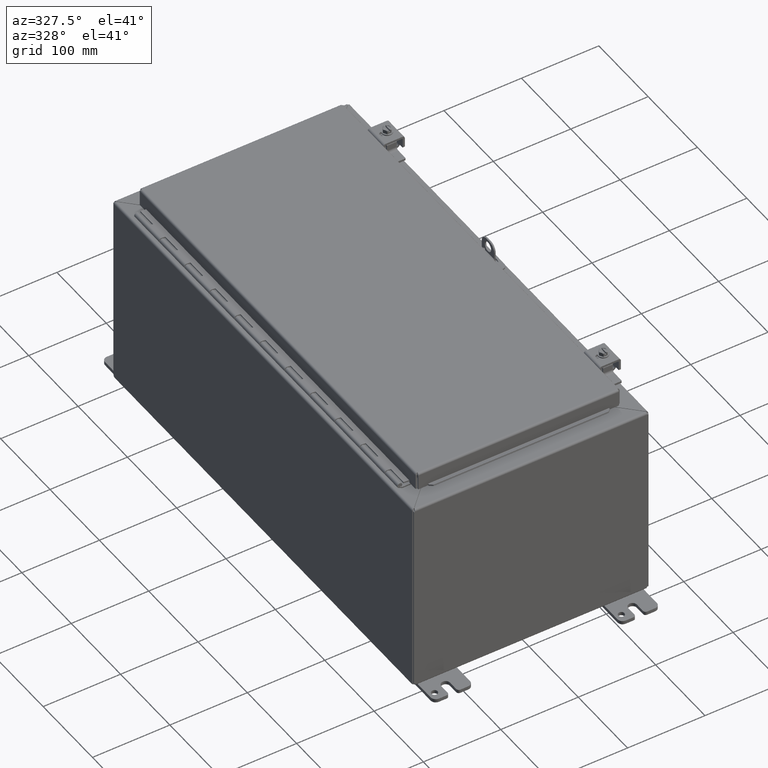
[diagram: clean part render]
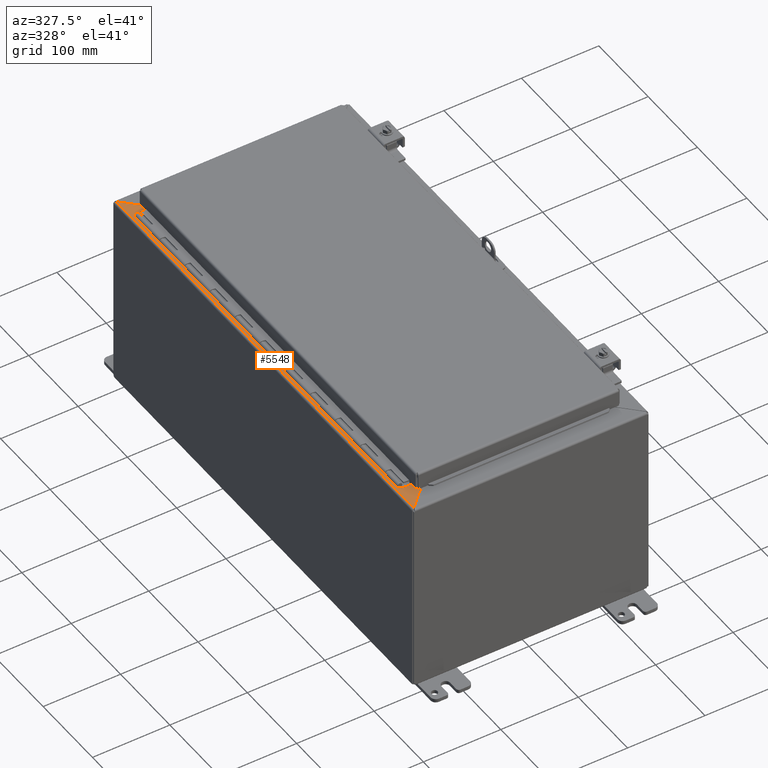
[diagram: same view with one face highlighted and labeled with its STEP entity id]
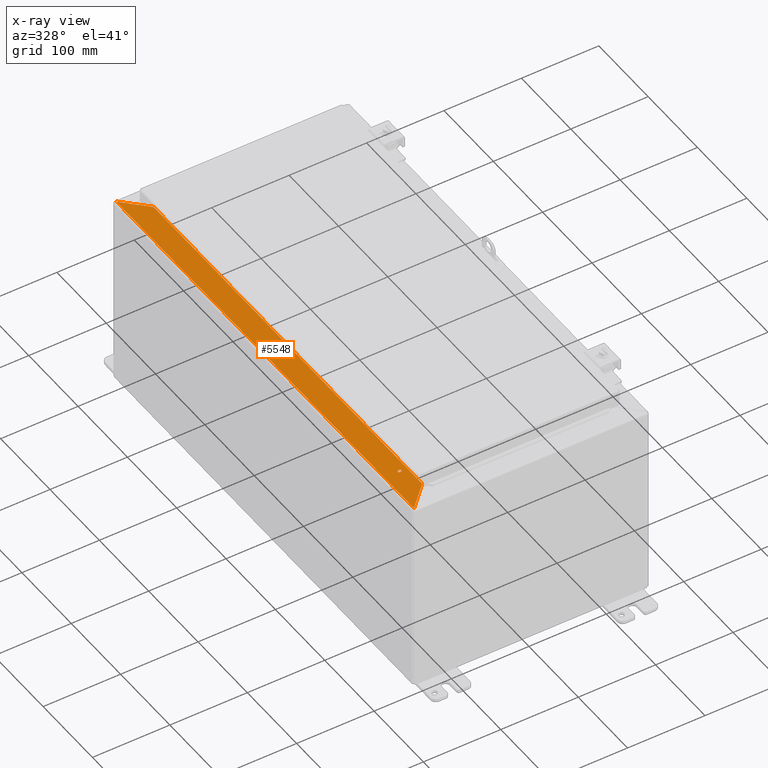
[diagram: x-ray of the same camera — body ghosted, the highlighted face saturated]
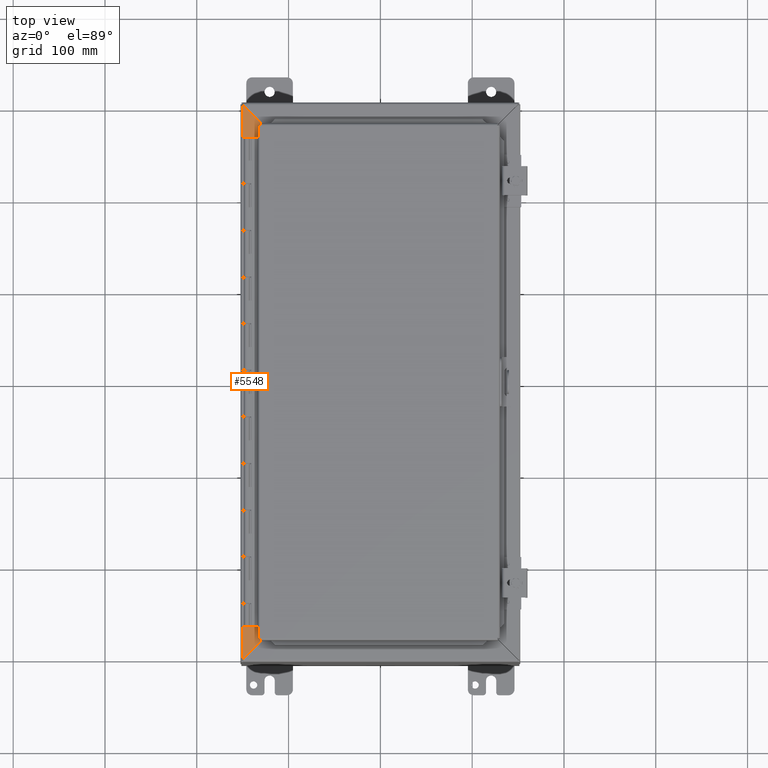
[diagram: same view with one face highlighted and labeled with its STEP entity id]
A machine part, auxiliary view. The second image highlights one B-rep face of the part: STEP entity #5548.
The next image is the same camera in x-ray: the body ghosted, the highlighted face saturated — about 0% of this face is hidden behind the body in this view.
A second angle (top view) of the same face is appended — the face is thin or edge-on in the first view.
In plain terms, the highlighted planar face has unit normal (0, 0, -1).
Its self-contained STEP definition (entity closure, byte-faithful):
#1522=CARTESIAN_POINT('',(-5.130500000000041,-9.562500000000039,10.000000000000007));
#1523=VERTEX_POINT('',#1522);
#1530=CARTESIAN_POINT('',(-5.067500000000041,-9.562500000000039,10.000000000000009));
#1531=VERTEX_POINT('',#1530);
#1532=CARTESIAN_POINT('',(-5.067500000000041,-9.562500000000039,10.000000000000009));
#1533=DIRECTION('',(-1.0,0.0,0.0));
#1534=VECTOR('',#1533,0.063);
#1535=LINE('',#1532,#1534);
#1536=EDGE_CURVE('',#1531,#1523,#1535,.T.);
#1562=CARTESIAN_POINT('',(-5.067500000000041,-9.437500000000039,10.000000000000009));
#1563=VERTEX_POINT('',#1562);
#1564=CARTESIAN_POINT('',(-5.067500000000041,-9.500000000000037,10.000000000000012));
#1565=DIRECTION('',(0.0,0.0,-1.0));
#1566=DIRECTION('',(0.0,-1.0,0.0));
#1567=AXIS2_PLACEMENT_3D('',#1564,#1565,#1566);
#1568=CIRCLE('',#1567,0.0625);
#1569=EDGE_CURVE('',#1563,#1531,#1568,.T.);
#1594=CARTESIAN_POINT('',(-5.130500000000041,-9.437500000000037,10.000000000000007));
#1595=VERTEX_POINT('',#1594);
#1596=CARTESIAN_POINT('',(-5.130500000000041,-9.437500000000039,10.000000000000007));
#1597=DIRECTION('',(1.0,0.0,0.0));
#1598=VECTOR('',#1597,0.063);
#1599=LINE('',#1596,#1598);
#1600=EDGE_CURVE('',#1595,#1563,#1599,.T.);
#1624=CARTESIAN_POINT('',(-5.130500000000041,-9.500000000000037,10.000000000000011));
#1625=DIRECTION('',(0.0,0.0,-1.0));
#1626=DIRECTION('',(0.0,1.0,0.0));
#1627=AXIS2_PLACEMENT_3D('',#1624,#1625,#1626);
#1628=CIRCLE('',#1627,0.0625);
#1629=EDGE_CURVE('',#1523,#1595,#1628,.T.);
#5215=CARTESIAN_POINT('',(-4.730250000000048,10.719201456544013,10.000000000000012));
#5216=VERTEX_POINT('',#5215);
#5263=CARTESIAN_POINT('',(-4.730250000000043,-10.719201456544015,10.000000000000012));
#5264=VERTEX_POINT('',#5263);
#5289=CARTESIAN_POINT('',(-4.730250000000043,-10.719201456544013,10.000000000000012));
#5290=DIRECTION('',(0.0,1.0,0.0));
#5291=VECTOR('',#5290,21.438402913088026);
#5292=LINE('',#5289,#5291);
#5293=EDGE_CURVE('',#5264,#5216,#5292,.T.);
#5336=CARTESIAN_POINT('',(-5.894750000000044,-11.883701456544012,10.000000000000002));
#5337=VERTEX_POINT('',#5336);
#5338=CARTESIAN_POINT('',(-4.730250000000043,-10.719201456544017,10.000000000000009));
#5339=DIRECTION('',(-0.707106781186547,-0.707106781186548,-7.550466E-015));
#5340=VECTOR('',#5339,1.646851693383469);
#5341=LINE('',#5338,#5340);
#5342=EDGE_CURVE('',#5264,#5337,#5341,.T.);
#5519=CARTESIAN_POINT('',(-5.303016921115465,-3.172773E-016,10.000000000000009));
#5520=DIRECTION('',(0.0,0.0,-1.0));
#5521=DIRECTION('',(-1.0,0.0,0.0));
#5522=AXIS2_PLACEMENT_3D('',#5519,#5520,#5521);
#5523=PLANE('',#5522);
#5524=ORIENTED_EDGE('',*,*,#5293,.T.);
#5525=CARTESIAN_POINT('',(-5.894750000000049,11.883701456544015,10.000000000000002));
#5526=VERTEX_POINT('',#5525);
#5527=CARTESIAN_POINT('',(-5.89475000000005,11.883701456544017,10.000000000000005));
#5528=DIRECTION('',(0.707106781186547,-0.707106781186548,6.471828E-015));
#5529=VECTOR('',#5528,1.646851693383473);
#5530=LINE('',#5527,#5529);
#5531=EDGE_CURVE('',#5526,#5216,#5530,.T.);
#5532=ORIENTED_EDGE('',*,*,#5531,.F.);
#5533=CARTESIAN_POINT('',(-5.89475000000005,11.883701456544015,10.000000000000007));
#5534=DIRECTION('',(0.0,-1.0,0.0));
#5535=VECTOR('',#5534,23.767402913088027);
#5536=LINE('',#5533,#5535);
#5537=EDGE_CURVE('',#5526,#5337,#5536,.T.);
#5538=ORIENTED_EDGE('',*,*,#5537,.T.);
#5539=ORIENTED_EDGE('',*,*,#5342,.F.);
#5540=EDGE_LOOP('',(#5524,#5532,#5538,#5539));
#5541=FACE_OUTER_BOUND('',#5540,.T.);
#5542=ORIENTED_EDGE('',*,*,#1536,.T.);
#5543=ORIENTED_EDGE('',*,*,#1629,.T.);
#5544=ORIENTED_EDGE('',*,*,#1600,.T.);
#5545=ORIENTED_EDGE('',*,*,#1569,.T.);
#5546=EDGE_LOOP('',(#5542,#5543,#5544,#5545));
#5547=FACE_BOUND('',#5546,.T.);
#5548=ADVANCED_FACE('',(#5541,#5547),#5523,.F.);